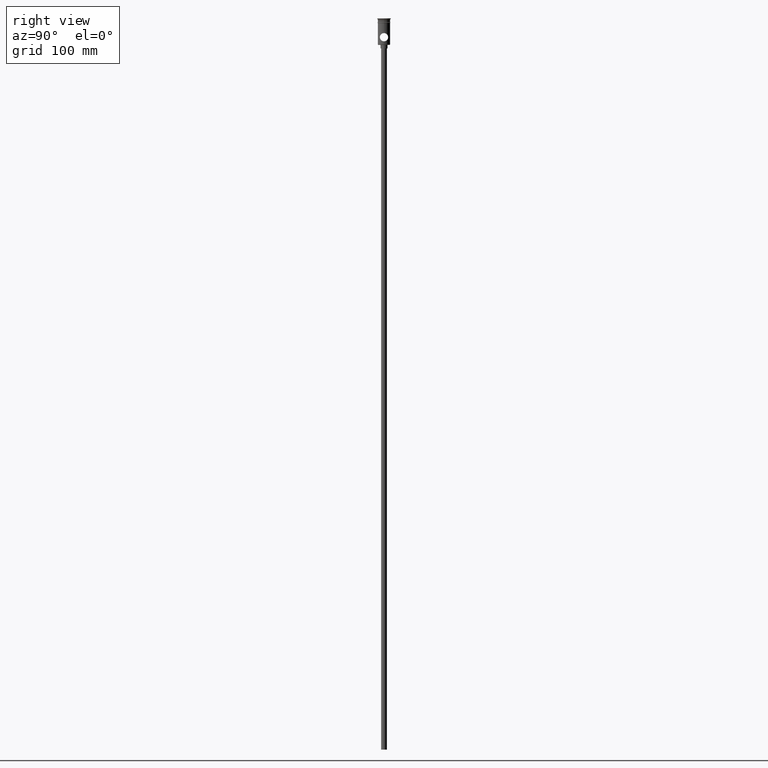
[diagram: clean part render]
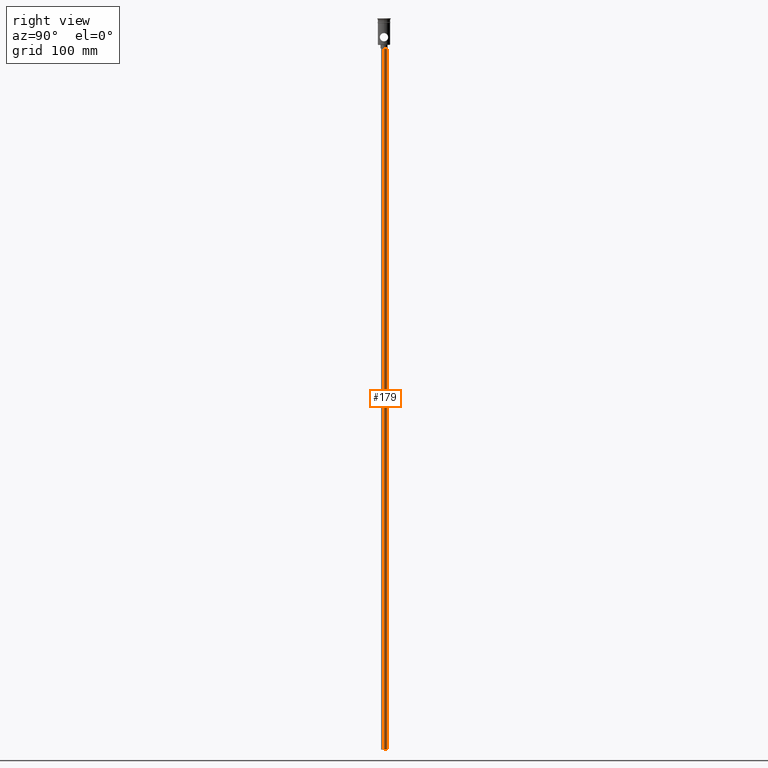
[diagram: same view with one face highlighted and labeled with its STEP entity id]
A machine part, right view. The second image highlights one B-rep face of the part: STEP entity #179.
In plain terms, the highlighted cylindrical surface (edge-blend (fillet) strip) has radius 2.5 mm, axis along (-0, -0, 1).
Its self-contained STEP definition (entity closure, byte-faithful):
#7 = ORIENTED_EDGE ( 'NONE', *, *, #882, .F. ) ;
#17 = EDGE_LOOP ( 'NONE', ( #7, #114, #812, #493 ) ) ;
#55 = LINE ( 'NONE', #507, #60 ) ;
#60 = VECTOR ( 'NONE', #382, 1000.000000000000000 ) ;
#75 = DIRECTION ( 'NONE',  ( -1.000000000000000000, 0.000000000000000000, 0.000000000000000000 ) ) ;
#86 = CARTESIAN_POINT ( 'NONE',  ( -2.500000000000000000, 3.061616997868383141E-16, -622.4999999999998863 ) ) ;
#114 = ORIENTED_EDGE ( 'NONE', *, *, #1185, .T. ) ;
#144 = DIRECTION ( 'NONE',  ( -0.000000000000000000, -0.000000000000000000, 1.000000000000000000 ) ) ;
#179 = ADVANCED_FACE ( 'NONE', ( #998 ), #1227, .T. ) ;
#318 = CARTESIAN_POINT ( 'NONE',  ( 2.500000000000000000, 0.000000000000000000, -622.4999999999998863 ) ) ;
#327 = VERTEX_POINT ( 'NONE', #821 ) ;
#382 = DIRECTION ( 'NONE',  ( -0.000000000000000000, -0.000000000000000000, 1.000000000000000000 ) ) ;
#437 = DIRECTION ( 'NONE',  ( 1.000000000000000000, 0.000000000000000000, 0.000000000000000000 ) ) ;
#459 = VECTOR ( 'NONE', #144, 1000.000000000000000 ) ;
#484 = CARTESIAN_POINT ( 'NONE',  ( 2.500000000000000000, 0.000000000000000000, -25.50000000000000000 ) ) ;
#493 = ORIENTED_EDGE ( 'NONE', *, *, #659, .F. ) ;
#496 = DIRECTION ( 'NONE',  ( -1.000000000000000000, 0.000000000000000000, 0.000000000000000000 ) ) ;
#507 = CARTESIAN_POINT ( 'NONE',  ( -2.500000000000000000, 3.061616997868383141E-16, -622.4999999999998863 ) ) ;
#512 = CIRCLE ( 'NONE', #1339, 2.500000000000000000 ) ;
#517 = VERTEX_POINT ( 'NONE', #86 ) ;
#630 = AXIS2_PLACEMENT_3D ( 'NONE', #1067, #1301, #496 ) ;
#632 = EDGE_CURVE ( 'NONE', #327, #1143, #987, .T. ) ;
#659 = EDGE_CURVE ( 'NONE', #1337, #1143, #829, .T. ) ;
#741 = CARTESIAN_POINT ( 'NONE',  ( 2.500000000000000000, 0.000000000000000000, -622.4999999999998863 ) ) ;
#748 = CARTESIAN_POINT ( 'NONE',  ( 0.000000000000000000, 0.000000000000000000, -622.4999999999998863 ) ) ;
#812 = ORIENTED_EDGE ( 'NONE', *, *, #632, .T. ) ;
#821 = CARTESIAN_POINT ( 'NONE',  ( -2.500000000000000000, 3.061616997868383141E-16, -25.50000000000000000 ) ) ;
#829 = LINE ( 'NONE', #741, #459 ) ;
#882 = EDGE_CURVE ( 'NONE', #517, #1337, #512, .T. ) ;
#980 = DIRECTION ( 'NONE',  ( 0.000000000000000000, 0.000000000000000000, -1.000000000000000000 ) ) ;
#987 = CIRCLE ( 'NONE', #630, 2.500000000000000000 ) ;
#998 = FACE_OUTER_BOUND ( 'NONE', #17, .T. ) ;
#1019 = CARTESIAN_POINT ( 'NONE',  ( 0.000000000000000000, 0.000000000000000000, -622.4999999999998863 ) ) ;
#1067 = CARTESIAN_POINT ( 'NONE',  ( 0.000000000000000000, 0.000000000000000000, -25.50000000000000000 ) ) ;
#1143 = VERTEX_POINT ( 'NONE', #484 ) ;
#1185 = EDGE_CURVE ( 'NONE', #517, #327, #55, .T. ) ;
#1227 = CYLINDRICAL_SURFACE ( 'NONE', #1388, 2.500000000000000000 ) ;
#1301 = DIRECTION ( 'NONE',  ( 0.000000000000000000, 0.000000000000000000, -1.000000000000000000 ) ) ;
#1337 = VERTEX_POINT ( 'NONE', #318 ) ;
#1339 = AXIS2_PLACEMENT_3D ( 'NONE', #748, #980, #75 ) ;
#1388 = AXIS2_PLACEMENT_3D ( 'NONE', #1019, #1452, #437 ) ;
#1452 = DIRECTION ( 'NONE',  ( -0.000000000000000000, -0.000000000000000000, 1.000000000000000000 ) ) ;